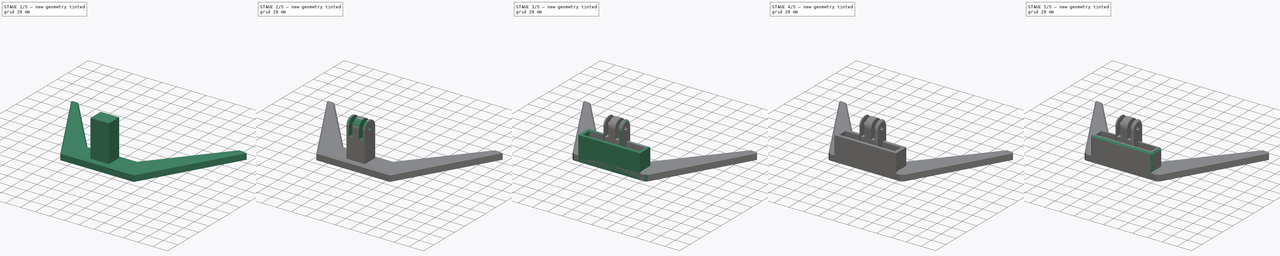
[diagram: build sequence overview — one tinted view per stage of 5, left to right]
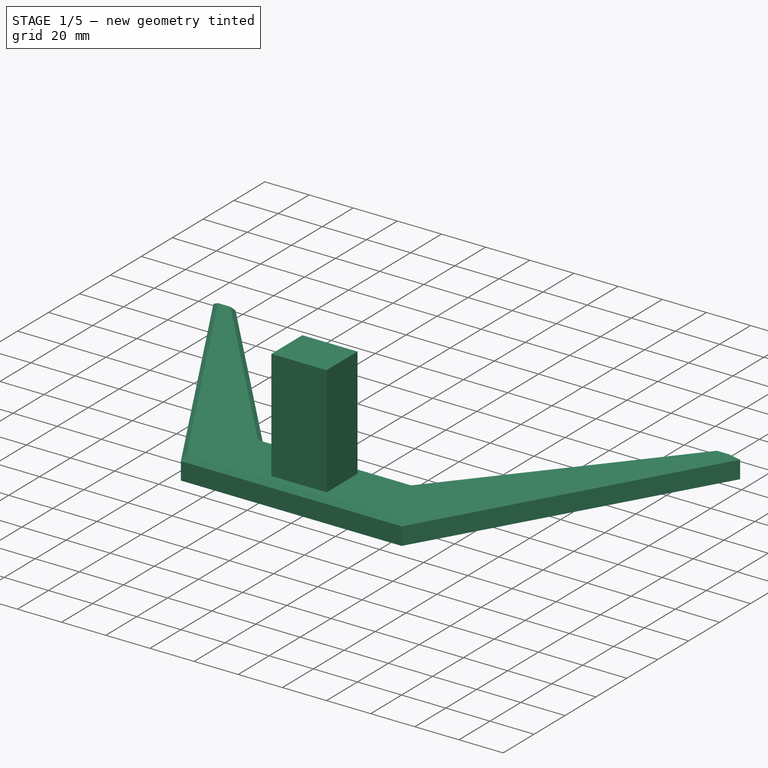
[diagram: stage 1 of 5 — iso view after this stage's code; geometry added in this stage tinted green]
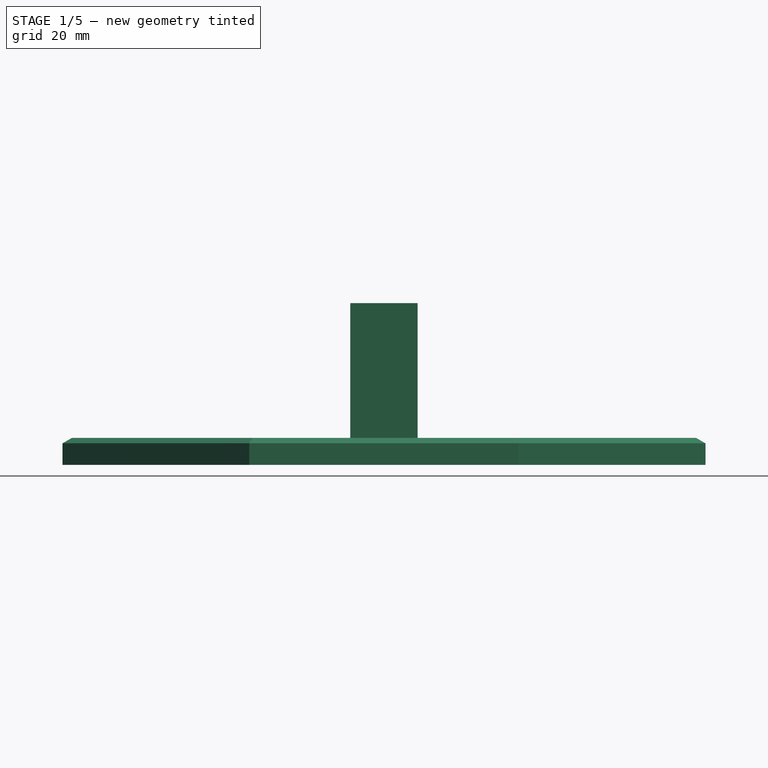
[diagram: stage 1 of 5 — front view after this stage's code; geometry added in this stage tinted green]
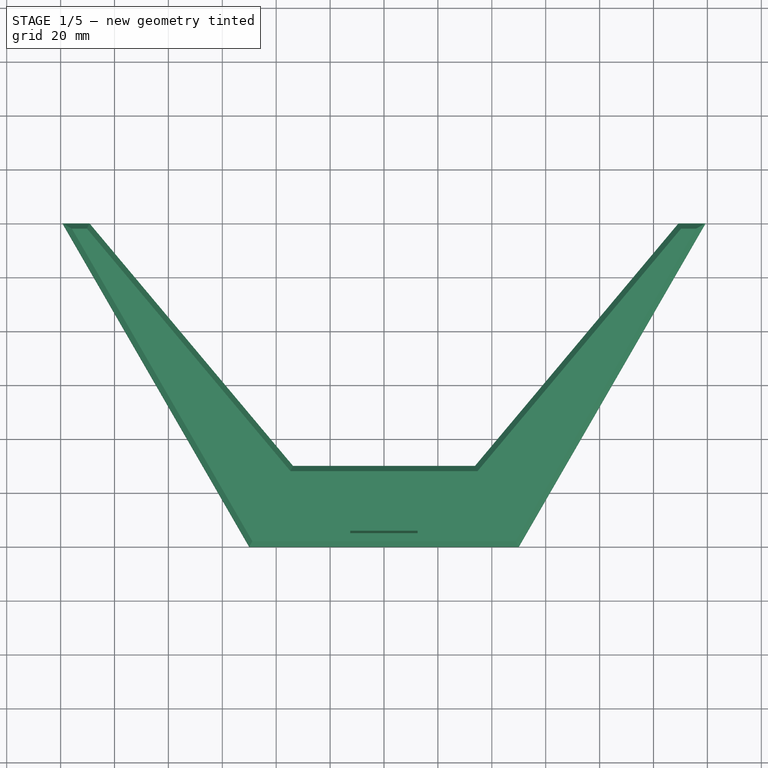
[diagram: stage 1 of 5 — top view after this stage's code; geometry added in this stage tinted green]
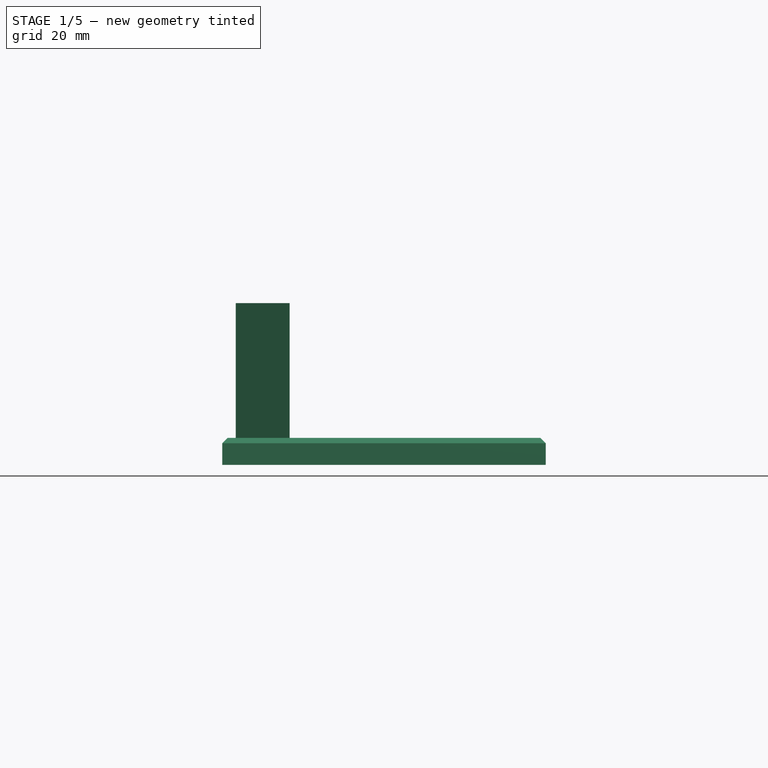
[diagram: stage 1 of 5 — right view after this stage's code; geometry added in this stage tinted green]
FCSTD DOCUMENT  (FreeCAD 0.19R23323 (Git))
Label: solder-phone-magnifier
License: All rights reserved
LicenseURL: http://en.wikipedia.org/wiki/All_rights_reserved
objects: Sketcher::SketchObject×11, PartDesign::Pad×5, PartDesign::Pocket×4, PartDesign::Chamfer×3, PartDesign::Fillet×2, PartDesign::Body×2, PartDesign::SubtractiveLoft×1
note: 43 computed .brp shape members not serialized (recipe doc carries the construction recipe); baked Part::Feature solids carry a one-line shape summary decoded from their .brp

FEATURE [Sketcher::SketchObject] Sketch
  MapMode = 5
  Support = -> [XY_Plane]
  sketch-geometry (9):
    g0: LineSegment StartX=-50 StartY=0 StartZ=0 EndX=0 EndY=0 EndZ=0
    g1: LineSegment StartX=0 StartY=0 StartZ=0 EndX=50 EndY=0 EndZ=0
    g2: LineSegment StartX=50 StartY=0 StartZ=0 EndX=119.282 EndY=120 EndZ=0
    g3: LineSegment StartX=119.282 StartY=120 StartZ=0 EndX=109.282 EndY=120 EndZ=0
    g4: LineSegment StartX=109.282 StartY=120 StartZ=0 EndX=33.7631 EndY=30 EndZ=0
    g5: LineSegment StartX=33.7631 StartY=30 StartZ=0 EndX=-33.7631 EndY=30 EndZ=0
    g6: LineSegment StartX=-33.7631 StartY=30 StartZ=0 EndX=-109.282 EndY=120 EndZ=0
    g7: LineSegment StartX=-109.282 StartY=120 StartZ=0 EndX=-119.282 EndY=120 EndZ=0
    g8: LineSegment StartX=-119.282 StartY=120 StartZ=0 EndX=-50 EndY=0 EndZ=0
  constraints (26):
    c: PointOnObject(g0,g-1)
    c: Coincident(g0,g-1)
    c: Coincident(g0,g1)
    c: PointOnObject(g1,g-1)
    c: Coincident(g1,g2)
    c: Coincident(g2,g3)
    c: Coincident(g3,g4)
    c: Coincident(g4,g5)
    c: Horizontal(g5)
    c: Coincident(g5,g6)
    c: Coincident(g6,g7)
    c: Coincident(g7,g8)
    c: Coincident(g8,g0)
    c: Angle(g0,g8) = 2.0944
    c: Angle(g2,g1) = 2.0944
    c: Equal(g0,g1)
    c: Parallel(g7,g0)
    c: Parallel(g3,g1)
    c: Equal(g8,g2)
    c: Equal(g7,g3)
    c: DistanceY(g7) = 120
    c: DistanceY(g-1,g5) = 30
    c: Distance(g3) = 10
    c: Distance(g0) = 50
    c: Angle(g5,g6) = 2.26893
    c: Angle(g4,g5) = 2.26893
FEATURE [PartDesign::Pad] Pad
  Direction = (1,1,1)
  Length = 10
  Length2 = 100
  Profile = -> Sketch
  Type = 0
FEATURE [PartDesign::Body] Body001  label="Mount"
  Group = -> [Sketch004,Pad002,Sketch005,Pad003,Sketch006,Pad004,Sketch007,Pocket002,Fillet001,Sketch008,Pocket003,Chamfer002]
  Origin = -> Origin001
  Placement = pos=(0,5,82) rot=(1,0,0;4.71239rad)
  Tip = -> Chamfer002
FEATURE [PartDesign::Chamfer] Chamfer  label="Foot"
  Angle = 45
  Base = -> Pad [Edge10,Edge13,Edge16,Edge19,Edge4,Edge7,Edge27,Edge22,Edge25]
  BaseFeature = -> Pad
  ChamferType = 0
  FlipDirection = false
  Size = 2
  Size2 = 1
  SupportTransform = false
FEATURE [Sketcher::SketchObject] Sketch001
  MapMode = 5
  Placement = pos=(0,0,10) rot=(0,0,1;0rad)
  Support = -> [Chamfer]
  sketch-geometry (4):
    g0: LineSegment StartX=-12.5 StartY=25 StartZ=0 EndX=12.5 EndY=25 EndZ=0
    g1: LineSegment StartX=12.5 StartY=25 StartZ=0 EndX=12.5 EndY=5 EndZ=0
    g2: LineSegment StartX=12.5 StartY=5 StartZ=0 EndX=-12.5 EndY=5 EndZ=0
    g3: LineSegment StartX=-12.5 StartY=5 StartZ=0 EndX=-12.5 EndY=25 EndZ=0
  constraints (11):
    c: Coincident(g0,g1)
    c: Coincident(g1,g2)
    c: Coincident(g2,g3)
    c: Coincident(g3,g0)
    c: Horizontal(g2)
    c: Vertical(g1)
    c: Vertical(g3)
    c: DistanceY(g-1,g2) = 5
    c: Distance(g3) = 20
    c: Distance(g2) = 25
    c: Symmetric(g0,g0,g-2)
FEATURE [PartDesign::Pad] Pad001  label="Riser"
  BaseFeature = -> Chamfer
  Direction = (1,1,1)
  Length = 50
  Length2 = 100
  Profile = -> Sketch001
  Type = 0
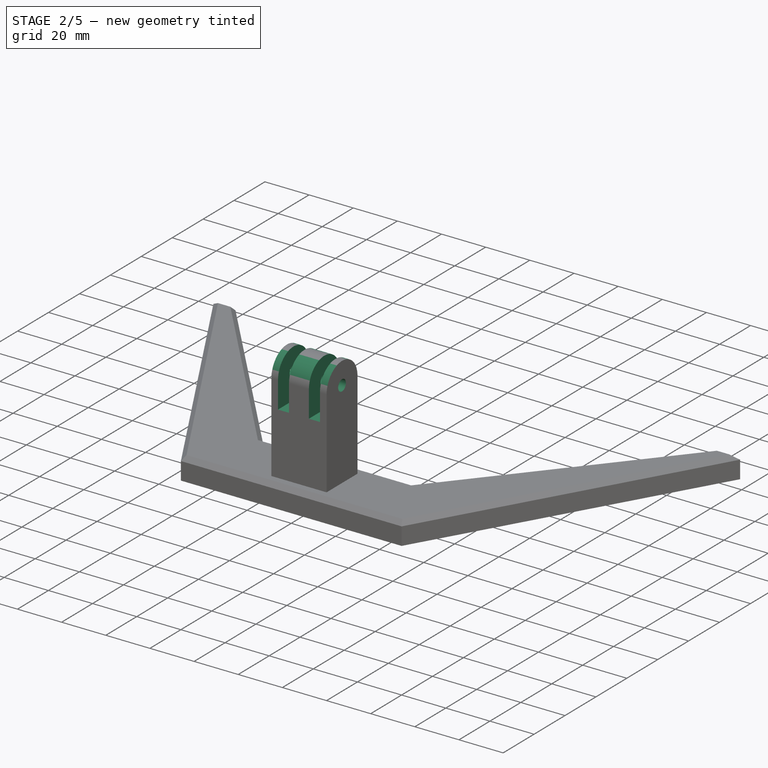
[diagram: stage 2 of 5 — iso view after this stage's code; geometry added in this stage tinted green]
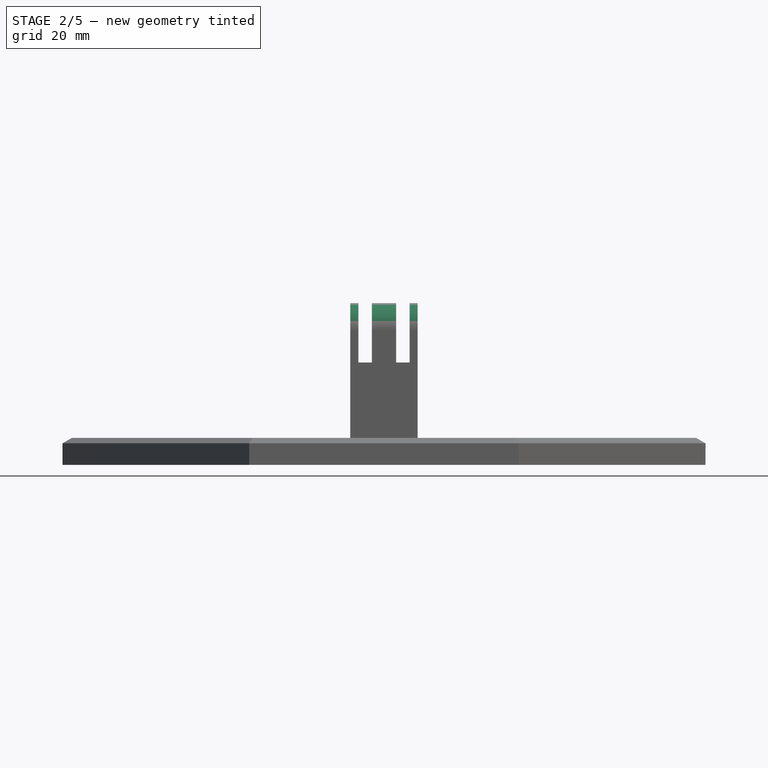
[diagram: stage 2 of 5 — front view after this stage's code; geometry added in this stage tinted green]
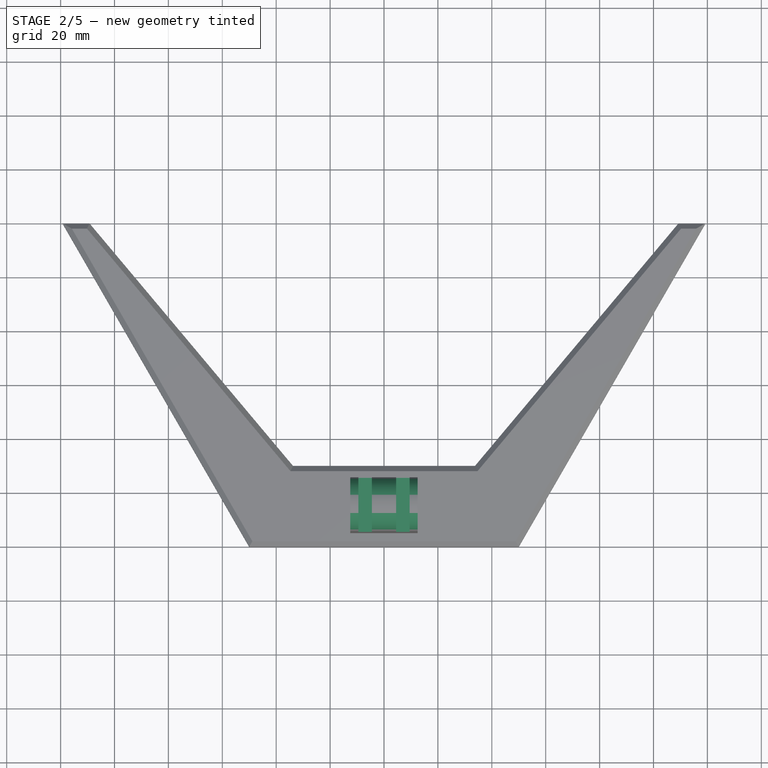
[diagram: stage 2 of 5 — top view after this stage's code; geometry added in this stage tinted green]
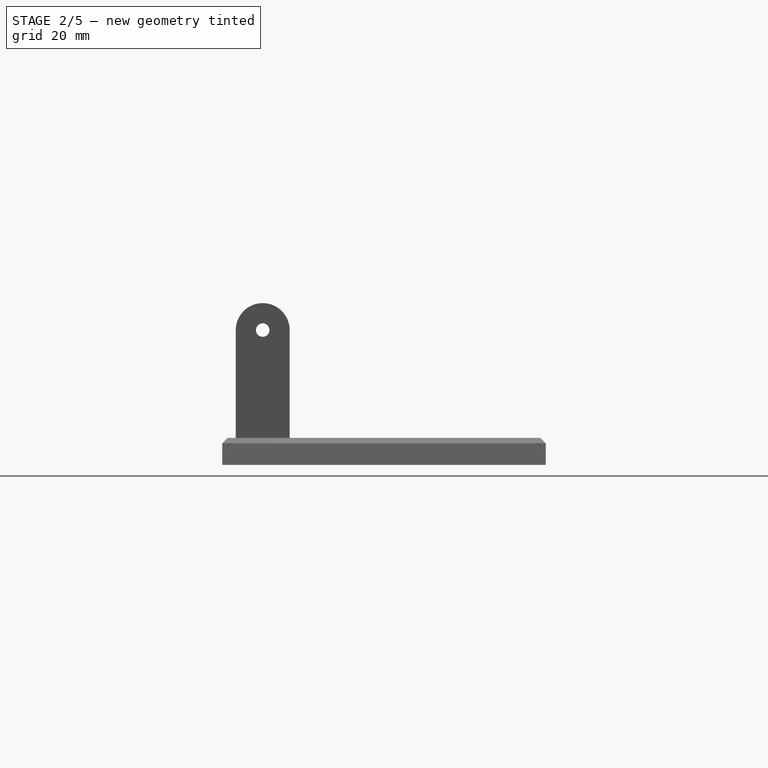
[diagram: stage 2 of 5 — right view after this stage's code; geometry added in this stage tinted green]
FEATURE [Sketcher::SketchObject] Sketch002
  MapMode = 5
  Placement = pos=(0,0,60) rot=(0,0,1;0rad)
  Support = -> [Pad001]
  sketch-geometry (8):
    g0: LineSegment StartX=-9.5 StartY=25 StartZ=0 EndX=-4.5 EndY=25 EndZ=0
    g1: LineSegment StartX=-4.5 StartY=25 StartZ=0 EndX=-4.5 EndY=5 EndZ=0
    g2: LineSegment StartX=-4.5 StartY=5 StartZ=0 EndX=-9.5 EndY=5 EndZ=0
    g3: LineSegment StartX=-9.5 StartY=5 StartZ=0 EndX=-9.5 EndY=25 EndZ=0
    g4: LineSegment StartX=4.5 StartY=25 StartZ=0 EndX=9.5 EndY=25 EndZ=0
    g5: LineSegment StartX=9.5 StartY=25 StartZ=0 EndX=9.5 EndY=5 EndZ=0
    g6: LineSegment StartX=9.5 StartY=5 StartZ=0 EndX=4.5 EndY=5 EndZ=0
    g7: LineSegment StartX=4.5 StartY=5 StartZ=0 EndX=4.5 EndY=25 EndZ=0
  constraints (23):
    c: Coincident(g0,g1)
    c: Coincident(g1,g2)
    c: Coincident(g2,g3)
    c: Coincident(g3,g0)
    c: Horizontal(g0)
    c: Horizontal(g2)
    c: Vertical(g1)
    c: Vertical(g3)
    c: Coincident(g4,g5)
    c: Coincident(g5,g6)
    c: Coincident(g6,g7)
    c: Coincident(g7,g4)
    c: Horizontal(g4)
    c: Horizontal(g6)
    c: Vertical(g5)
    c: Vertical(g7)
    c: Equal(g0,g4)
    c: Equal(g3,g7)
    c: Symmetric(g0,g4,g-2)
    c: Distance(g3) = 20
    c: Distance(g2) = 5
    c: DistanceY(g-1,g1) = 5
    c: DistanceX(g-1,g6) = 4.5
FEATURE [PartDesign::Pocket] Pocket
  BaseFeature = -> Pad001
  Length = 22
  Length2 = 100
  Profile = -> Sketch002
  Type = 0
FEATURE [PartDesign::Fillet] Fillet
  Base = -> Pocket [Edge53,Edge57,Edge61,Edge73,Edge69,Edge65]
  BaseFeature = -> Pocket
  Radius = 9.99
  SupportTransform = false
FEATURE [Sketcher::SketchObject] Sketch003
  MapMode = 5
  Placement = pos=(12.5,0,0) rot=(0.57735,0.57735,0.57735;2.0944rad)
  Support = -> [Fillet]
  sketch-geometry (1):
    g0: Circle CenterX=15 CenterY=50 CenterZ=0 NormalX=0 NormalY=0 NormalZ=1 AngleXU=0 Radius=2.5
  constraints (3):
    c: Radius(g0) = 2.5
    c: DistanceX(g-1,g0) = 15
    c: DistanceY(g-1,g0) = 50
FEATURE [PartDesign::Pocket] Pocket001  label="Hole Cutout001"
  BaseFeature = -> Fillet
  Length = 25
  Length2 = 100
  Profile = -> Sketch003
  Type = 0
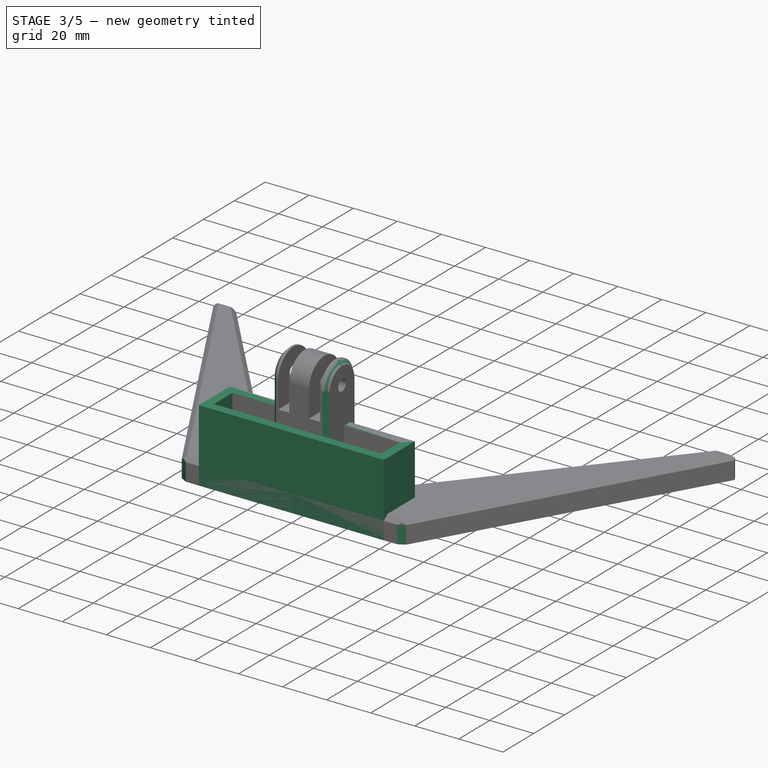
[diagram: stage 3 of 5 — iso view after this stage's code; geometry added in this stage tinted green]
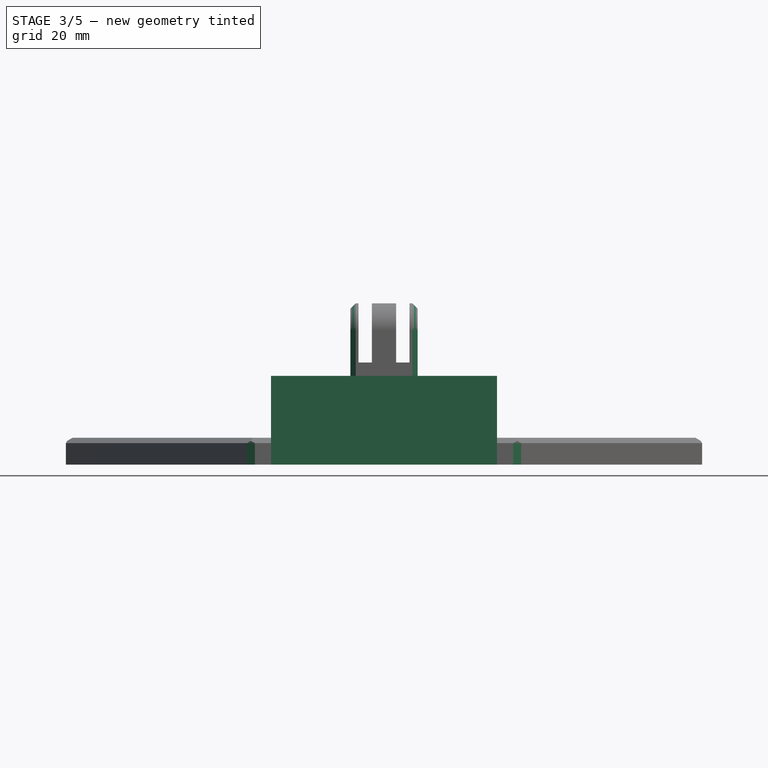
[diagram: stage 3 of 5 — front view after this stage's code; geometry added in this stage tinted green]
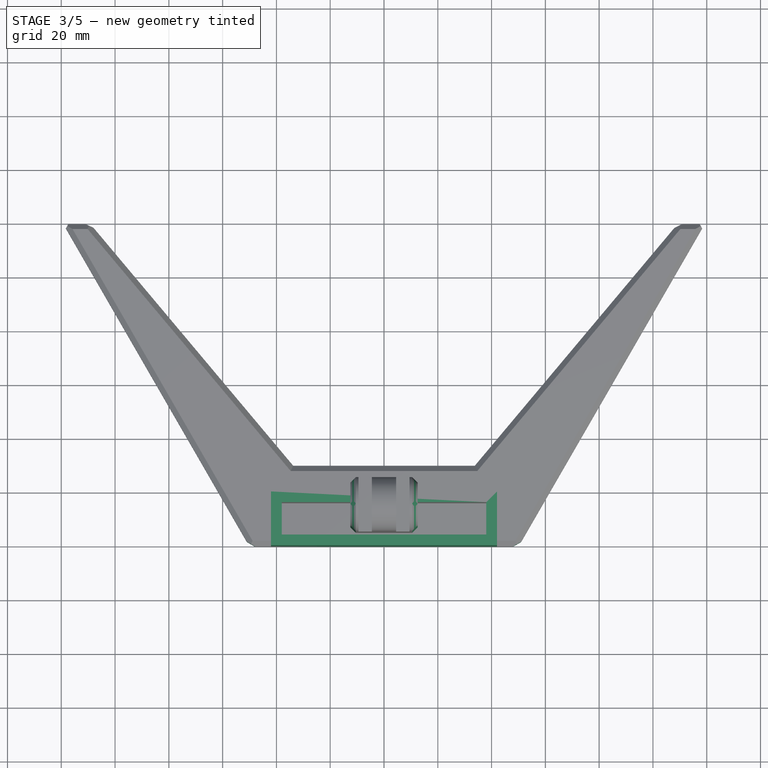
[diagram: stage 3 of 5 — top view after this stage's code; geometry added in this stage tinted green]
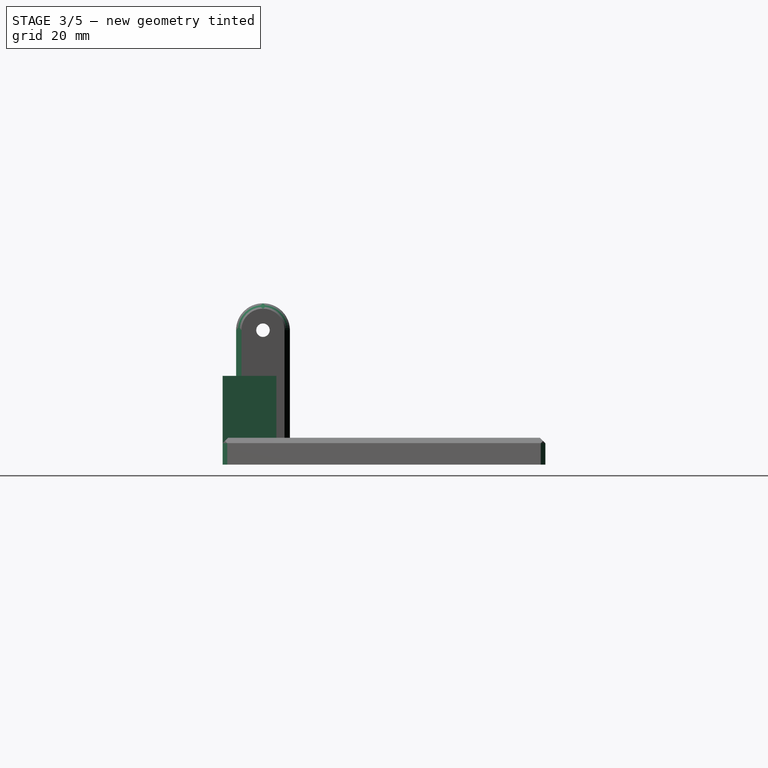
[diagram: stage 3 of 5 — right view after this stage's code; geometry added in this stage tinted green]
FEATURE [Sketcher::SketchObject] Sketch004
  MapMode = 5
  Support = -> [XY_Plane001]
  sketch-geometry (9):
    g0: LineSegment StartX=-42 StartY=20 StartZ=0 EndX=42 EndY=20 EndZ=0
    g1: LineSegment StartX=42 StartY=20 StartZ=0 EndX=42 EndY=0 EndZ=0
    g2: LineSegment StartX=42 StartY=0 StartZ=0 EndX=-42 EndY=0 EndZ=0
    g3: LineSegment StartX=-42 StartY=0 StartZ=0 EndX=-42 EndY=20 EndZ=0
    g4: LineSegment StartX=-38 StartY=16 StartZ=0 EndX=38 EndY=16 EndZ=0
    g5: LineSegment StartX=38 StartY=16 StartZ=0 EndX=38 EndY=4 EndZ=0
    g6: LineSegment StartX=38 StartY=4 StartZ=0 EndX=-38 EndY=4 EndZ=0
    g7: LineSegment StartX=-38 StartY=4 StartZ=0 EndX=-38 EndY=16 EndZ=0
    g8: GeomPoint X=0 Y=4 Z=0
  constraints (25):
    c: Coincident(g0,g1)
    c: Coincident(g1,g2)
    c: Coincident(g2,g3)
    c: Coincident(g3,g0)
    c: Horizontal(g0)
    c: Horizontal(g2)
    c: Vertical(g1)
    c: Vertical(g3)
    c: PointOnObject(g1,g-1)
    c: Coincident(g4,g5)
    c: Coincident(g5,g6)
    c: Coincident(g6,g7)
    c: Coincident(g7,g4)
    c: Horizontal(g4)
    c: Horizontal(g6)
    c: Vertical(g5)
    c: Vertical(g7)
    c: Distance(g4) = 76
    c: Distance(g5) = 12
    c: DistanceX(g4,g0) = 4
    c: DistanceY(g4,g0) = 4
    c: Symmetric(g6,g5,g8)
    c: PointOnObject(g8,g-2)
    c: DistanceX(g2,g6) = 4
    c: DistanceY(g2,g6) = 4
FEATURE [PartDesign::Pad] Pad002  label="Phone Mount"
  Direction = (1,1,1)
  Length = 33
  Length2 = 100
  Profile = -> Sketch004
  Type = 0
FEATURE [Sketcher::SketchObject] Sketch009
  MapMode = 5
  Placement = pos=(-12.5,0,0) rot=(0.57735,-0.57735,-0.57735;2.0944rad)
  Support = -> [Pocket001]
  sketch-geometry (1):
    g0: Circle CenterX=-15 CenterY=50 CenterZ=0 NormalX=0 NormalY=0 NormalZ=1 AngleXU=0 Radius=4.5
  constraints (3):
    c: Radius(g0) = 4.5
    c: DistanceX(g0,g-1) = 15
    c: DistanceY(g-1,g0) = 50
FEATURE [Sketcher::SketchObject] Sketch010
  MapMode = 5
  Placement = pos=(-9.5,0,0) rot=(0.57735,0.57735,0.57735;2.0944rad)
  Support = -> [Pocket001]
  sketch-geometry (1):
    g0: Circle CenterX=15 CenterY=50 CenterZ=0 NormalX=0 NormalY=0 NormalZ=1 AngleXU=0 Radius=2.5
  constraints (3):
    c: Radius(g0) = 2.5
    c: DistanceY(g-1,g0) = 50
    c: DistanceX(g-1,g0) = 15
FEATURE [PartDesign::SubtractiveLoft] SubtractiveLoft
  BaseFeature = -> Pocket001
  Closed = false
  Profile = -> Sketch009
  Ruled = false
  Sections = -> [Sketch010]
FEATURE [PartDesign::Chamfer] Chamfer001
  Angle = 45
  Base = -> SubtractiveLoft [Edge1,Edge12,Edge35,Edge5,Edge105,Edge109,Edge100,Edge96,Edge101,Edge94]
  BaseFeature = -> SubtractiveLoft
  ChamferType = 0
  FlipDirection = false
  Size = 2
  Size2 = 1
  SupportTransform = false
FEATURE [PartDesign::Body] Body  label="Base"
  Group = -> [Sketch,Pad,Chamfer,Sketch001,Pad001,Sketch002,Pocket,Fillet,Sketch003,Pocket001,Sketch009,Sketch010,SubtractiveLoft,Chamfer001]
  Origin = -> Origin
  Tip = -> Chamfer001
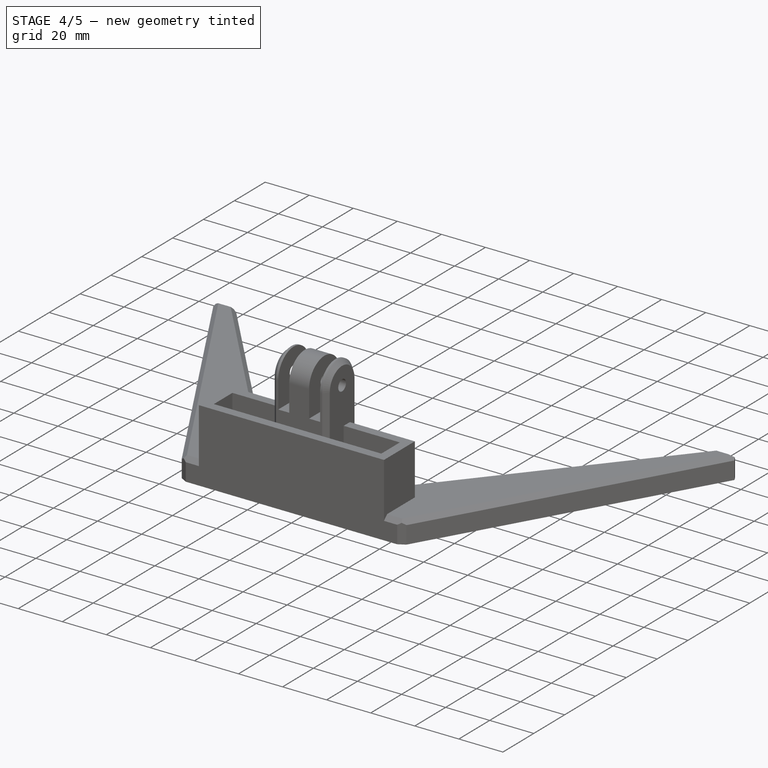
[diagram: stage 4 of 5 — iso view after this stage's code; geometry added in this stage tinted green]
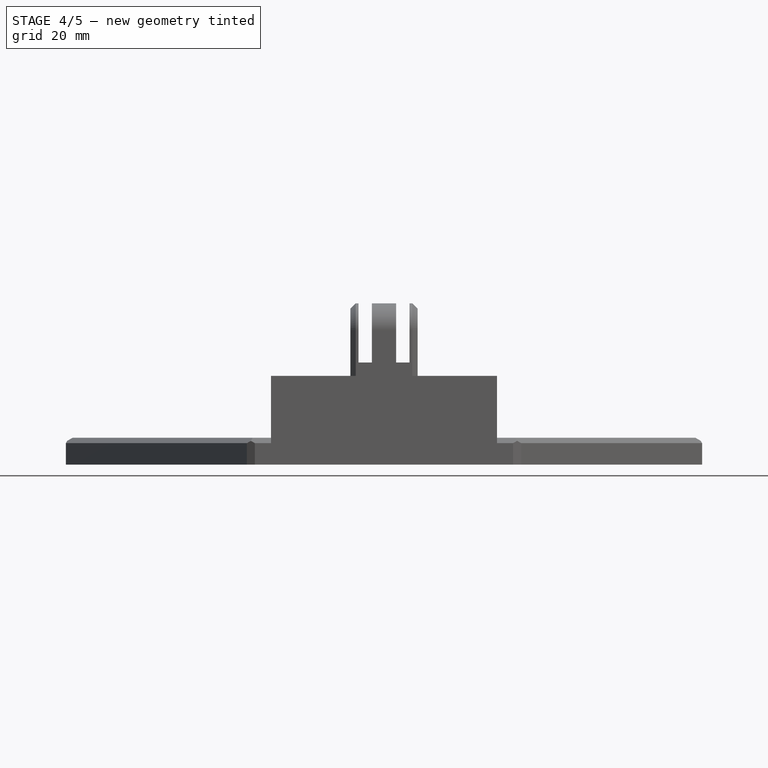
[diagram: stage 4 of 5 — front view after this stage's code; geometry added in this stage tinted green]
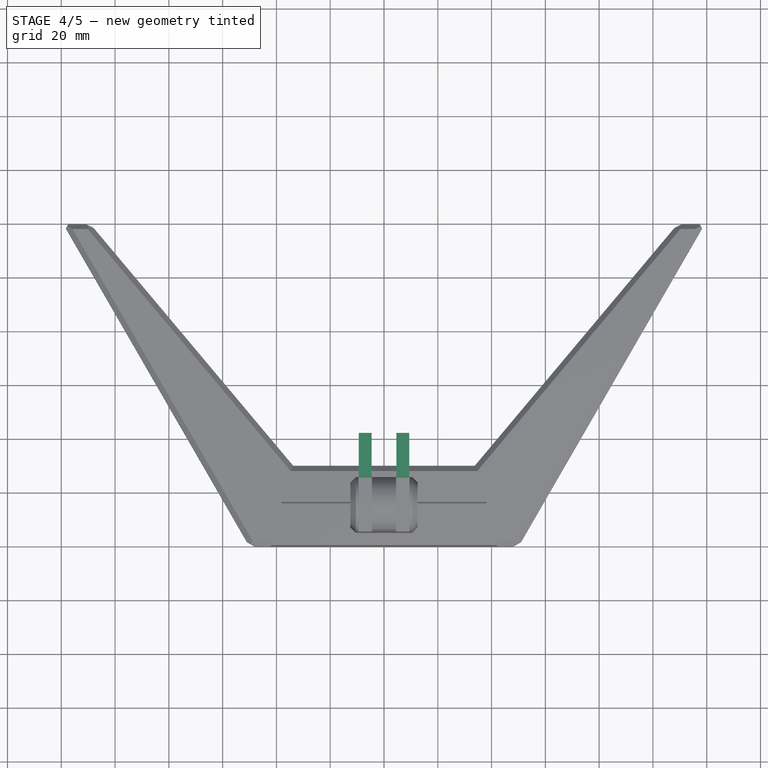
[diagram: stage 4 of 5 — top view after this stage's code; geometry added in this stage tinted green]
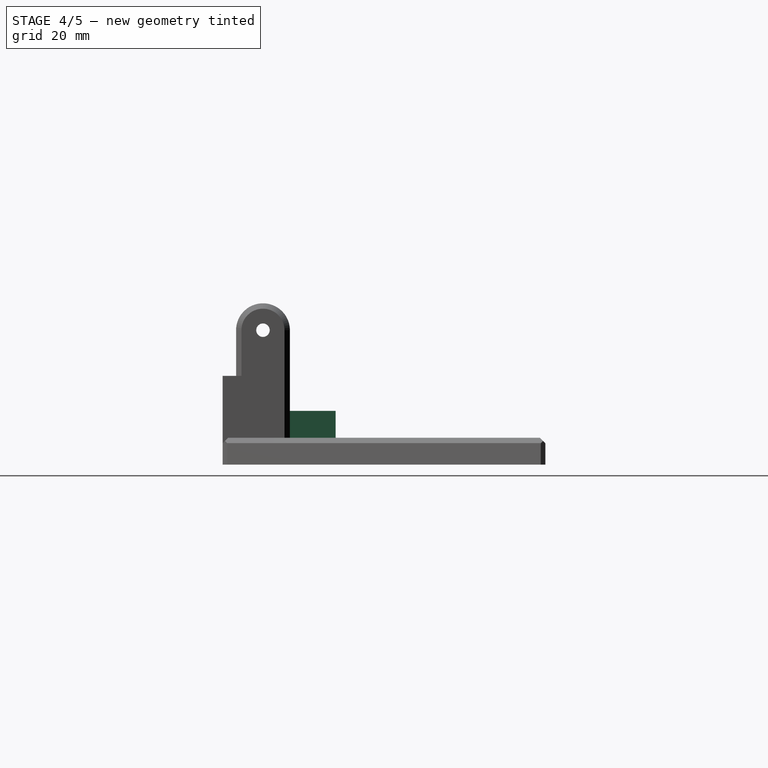
[diagram: stage 4 of 5 — right view after this stage's code; geometry added in this stage tinted green]
FEATURE [Sketcher::SketchObject] Sketch005
  MapMode = 5
  Placement = pos=(0,0,0) rot=(1,0,0;3.14159rad)
  Support = -> [Pad002]
  sketch-geometry (8):
    g0: LineSegment StartX=-42 StartY=0 StartZ=0 EndX=-30 EndY=0 EndZ=0
    g1: LineSegment StartX=-30 StartY=0 StartZ=0 EndX=-30 EndY=-20 EndZ=0
    g2: LineSegment StartX=-30 StartY=-20 StartZ=0 EndX=-42 EndY=-20 EndZ=0
    g3: LineSegment StartX=-42 StartY=-20 StartZ=0 EndX=-42 EndY=0 EndZ=0
    g4: LineSegment StartX=30 StartY=0 StartZ=0 EndX=42 EndY=0 EndZ=0
    g5: LineSegment StartX=42 StartY=0 StartZ=0 EndX=42 EndY=-20 EndZ=0
    g6: LineSegment StartX=42 StartY=-20 StartZ=0 EndX=30 EndY=-20 EndZ=0
    g7: LineSegment StartX=30 StartY=-20 StartZ=0 EndX=30 EndY=0 EndZ=0
  constraints (23):
    c: Coincident(g0,g1)
    c: Coincident(g1,g2)
    c: Coincident(g2,g3)
    c: Coincident(g3,g0)
    c: Horizontal(g0)
    c: Horizontal(g2)
    c: Vertical(g1)
    c: Vertical(g3)
    c: PointOnObject(g0,g-1)
    c: Coincident(g4,g5)
    c: Coincident(g5,g6)
    c: Coincident(g6,g7)
    c: Coincident(g7,g4)
    c: Horizontal(g4)
    c: Horizontal(g6)
    c: Vertical(g5)
    c: Vertical(g7)
    c: Distance(g0) = 12
    c: Equal(g0,g4)
    c: Distance(g1) = 20
    c: Equal(g1,g7)
    c: Symmetric(g0,g4,g-2)
    c: DistanceX(g-1,g4) = 30
FEATURE [PartDesign::Pad] Pad003  label="Stopper"
  BaseFeature = -> Pad002
  Direction = (1,1,1)
  Length = 3
  Length2 = 100
  Profile = -> Sketch005
  Reversed = true
  Type = 0
FEATURE [Sketcher::SketchObject] Sketch006
  MapMode = 5
  Placement = pos=(0,20,0) rot=(0,0.707107,0.707107;3.14159rad)
  Support = -> [Pad003]
  sketch-geometry (4):
    g0: LineSegment StartX=-9.4 StartY=20 StartZ=0 EndX=9.4 EndY=20 EndZ=0
    g1: LineSegment StartX=9.4 StartY=20 StartZ=0 EndX=9.4 EndY=0 EndZ=0
    g2: LineSegment StartX=9.4 StartY=0 StartZ=0 EndX=-9.4 EndY=0 EndZ=0
    g3: LineSegment StartX=-9.4 StartY=0 StartZ=0 EndX=-9.4 EndY=20 EndZ=0
  constraints (11):
    c: Coincident(g0,g1)
    c: Coincident(g1,g2)
    c: Coincident(g2,g3)
    c: Coincident(g3,g0)
    c: Horizontal(g0)
    c: Horizontal(g2)
    c: Vertical(g1)
    c: Vertical(g3)
    c: Distance(g0) = 18.8
    c: Distance(g3) = 20
    c: Symmetric(g2,g1,g-1)
FEATURE [PartDesign::Pad] Pad004  label="Swivel"
  BaseFeature = -> Pad003
  Direction = (1,1,1)
  Length = 22
  Length2 = 100
  Profile = -> Sketch006
  Type = 0
FEATURE [Sketcher::SketchObject] Sketch007
  MapMode = 5
  Placement = pos=(0,42,-7.5e-15) rot=(0,0.707107,0.707107;3.14159rad)
  Support = -> [Pad004]
  sketch-geometry (4):
    g0: LineSegment StartX=-4.6 StartY=20 StartZ=0 EndX=4.6 EndY=20 EndZ=0
    g1: LineSegment StartX=4.6 StartY=20 StartZ=0 EndX=4.6 EndY=0 EndZ=0
    g2: LineSegment StartX=4.6 StartY=0 StartZ=0 EndX=-4.6 EndY=0 EndZ=0
    g3: LineSegment StartX=-4.6 StartY=0 StartZ=0 EndX=-4.6 EndY=20 EndZ=0
  constraints (11):
    c: Coincident(g0,g1)
    c: Coincident(g1,g2)
    c: Coincident(g2,g3)
    c: Coincident(g3,g0)
    c: Horizontal(g0)
    c: Vertical(g1)
    c: Vertical(g3)
    c: Distance(g0) = 9.2
    c: Distance(g3) = 20
    c: PointOnObject(g2,g-1)
    c: Symmetric(g2,g1,g-2)
FEATURE [PartDesign::Pocket] Pocket002  label="Swivel Cutout"
  BaseFeature = -> Pad004
  Length = 20
  Length2 = 100
  Profile = -> Sketch007
  Type = 0
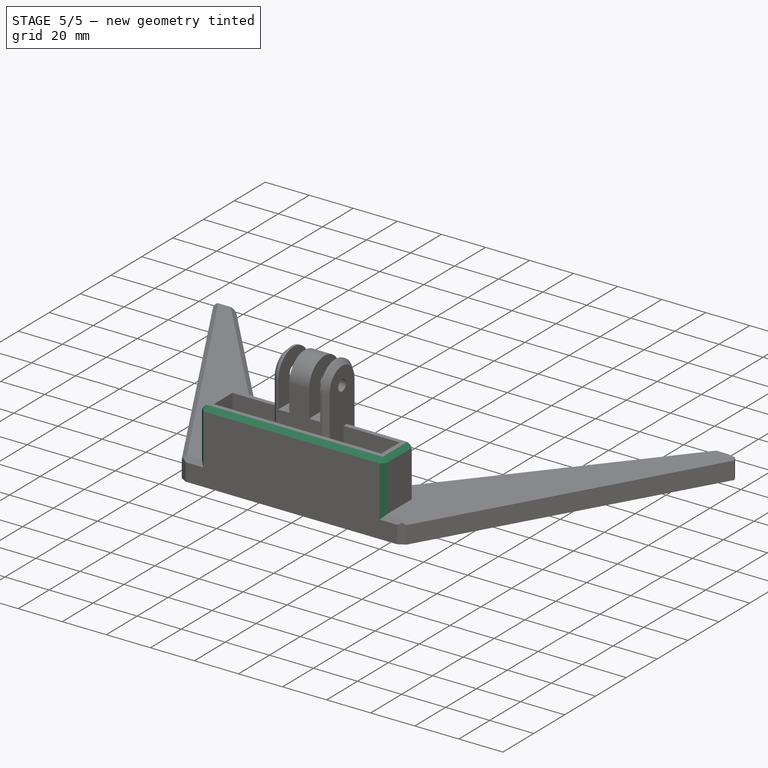
[diagram: stage 5 of 5 — iso view after this stage's code; geometry added in this stage tinted green]
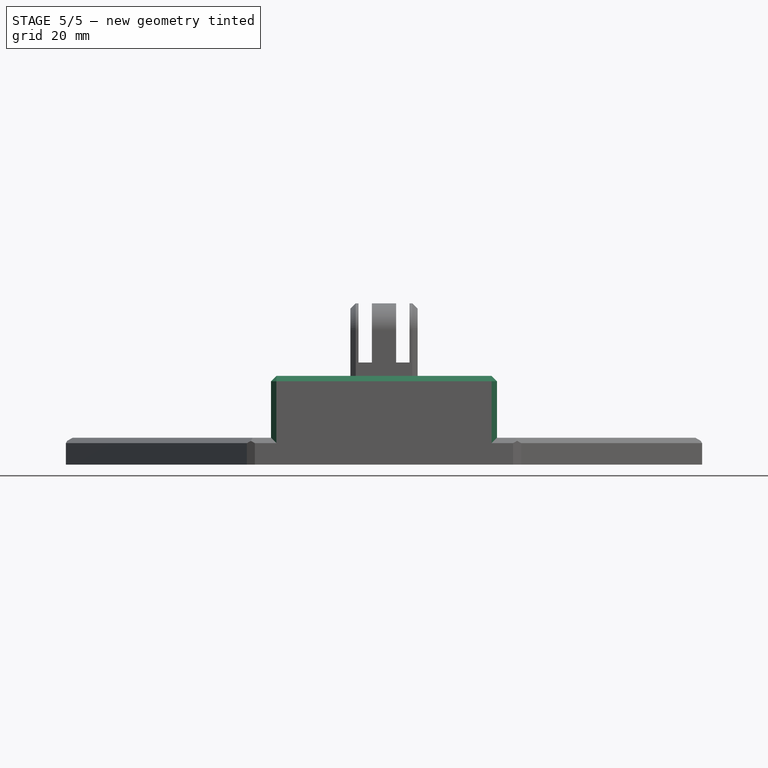
[diagram: stage 5 of 5 — front view after this stage's code; geometry added in this stage tinted green]
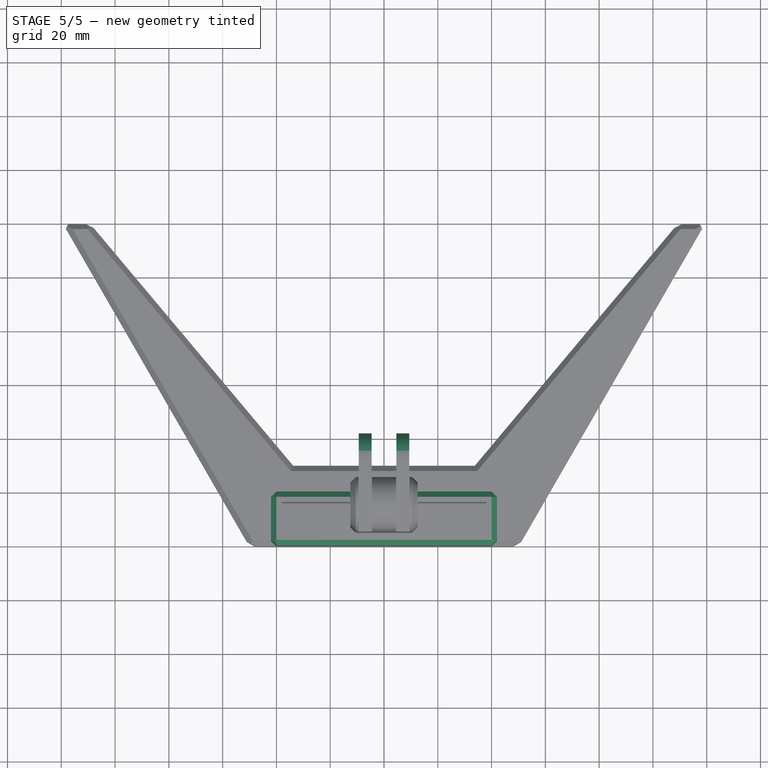
[diagram: stage 5 of 5 — top view after this stage's code; geometry added in this stage tinted green]
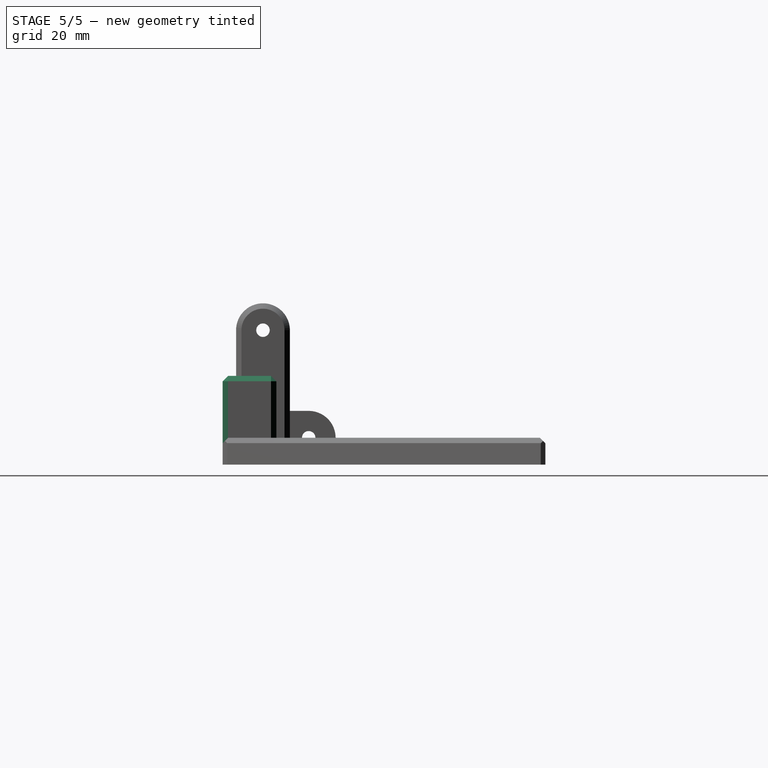
[diagram: stage 5 of 5 — right view after this stage's code; geometry added in this stage tinted green]
FEATURE [PartDesign::Fillet] Fillet001  label="Swivel Roundover"
  Base = -> Pocket002 [Edge80,Edge76,Edge36,Edge40]
  BaseFeature = -> Pocket002
  Radius = 9.9999
  SupportTransform = false
FEATURE [Sketcher::SketchObject] Sketch008
  MapMode = 5
  Placement = pos=(9.4,0,0) rot=(0.57735,0.57735,0.57735;2.0944rad)
  Support = -> [Fillet001]
  sketch-geometry (1):
    g0: Circle CenterX=32 CenterY=10 CenterZ=0 NormalX=0 NormalY=0 NormalZ=1 AngleXU=0 Radius=2.5
  constraints (3):
    c: Radius(g0) = 2.5
    c: DistanceX(g-1,g0) = 32
    c: DistanceY(g-1,g0) = 10
FEATURE [PartDesign::Pocket] Pocket003  label="Hole Cutout"
  BaseFeature = -> Fillet001
  Length = 20
  Length2 = 100
  Profile = -> Sketch008
  Type = 0
FEATURE [PartDesign::Chamfer] Chamfer002
  Angle = 45
  Base = -> Pocket003 [Edge58,Edge23,Edge56,Edge89,Edge60,Edge59,Edge88,Edge24,Edge61,Edge67,Edge25,Edge51,Edge76,Edge70,Edge71,Edge92,Edge87,Edge55,Edge20,Edge18,Edge50]
  BaseFeature = -> Pocket003
  ChamferType = 0
  FlipDirection = false
  Size = 2
  Size2 = 1
  SupportTransform = false
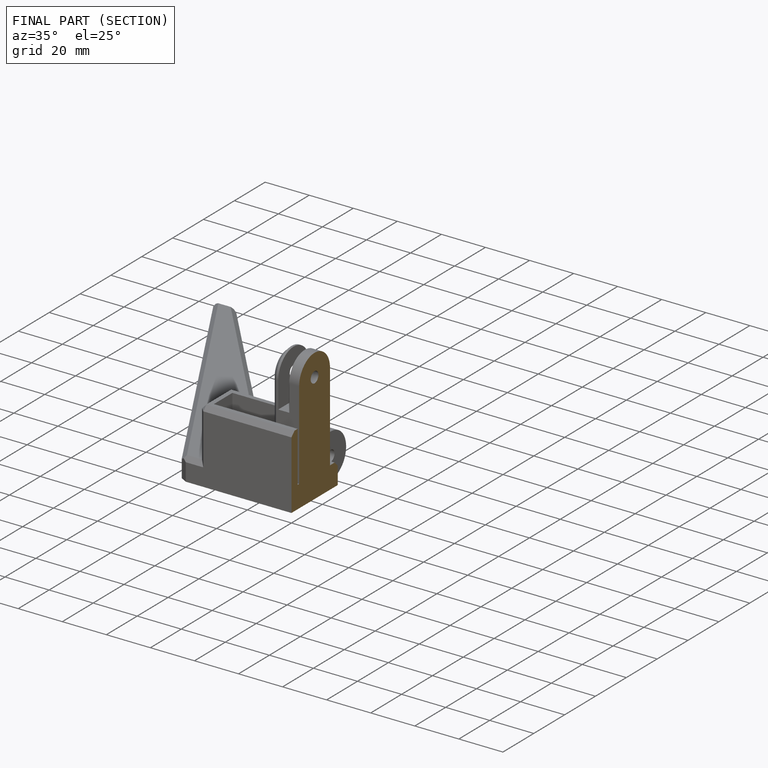
[diagram: finished part — half-section view (interior)]
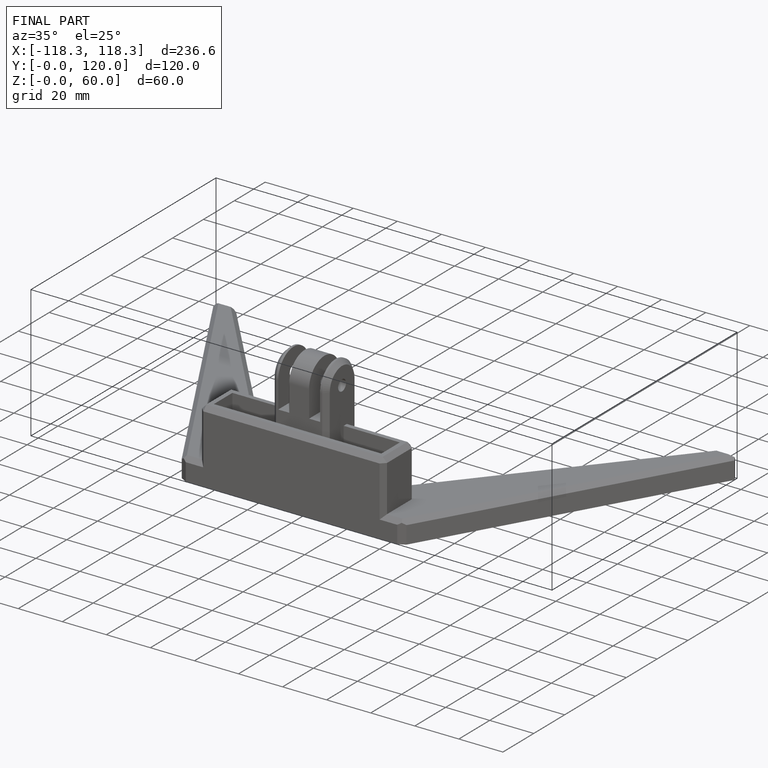
[diagram: finished part — iso view with bounding-box wireframe]
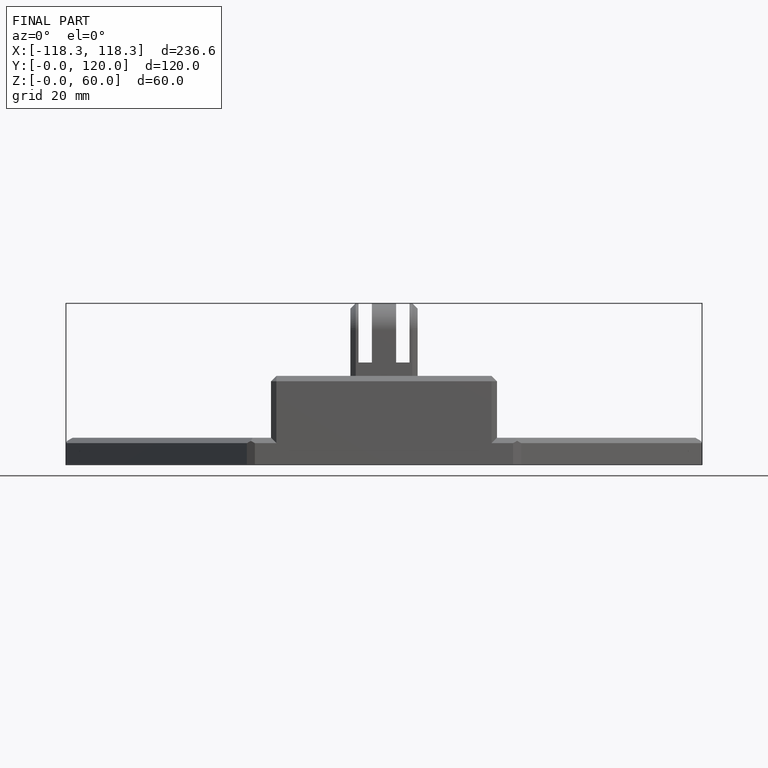
[diagram: finished part — front view with bounding-box wireframe]
